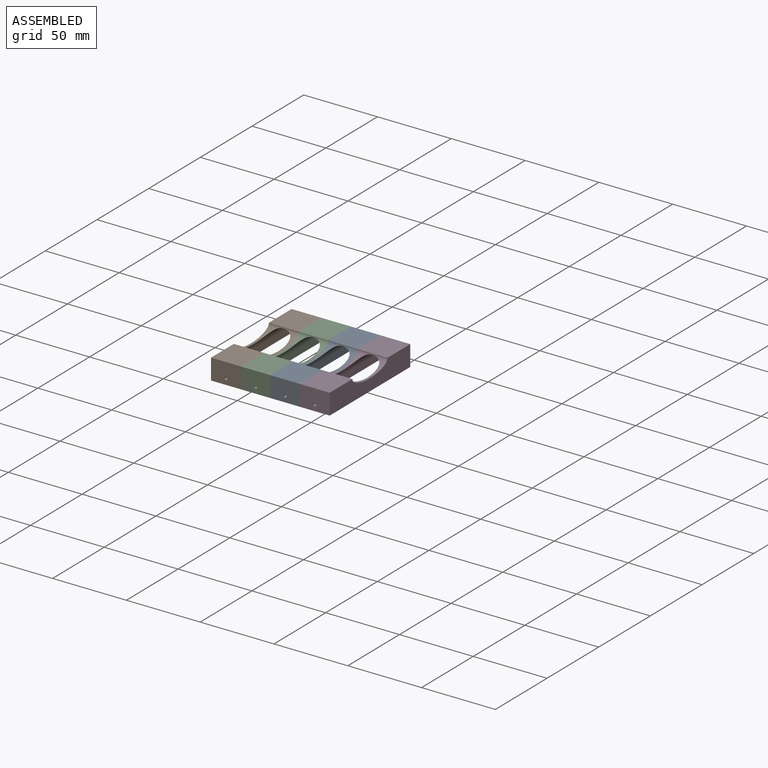
[diagram: assembled view]
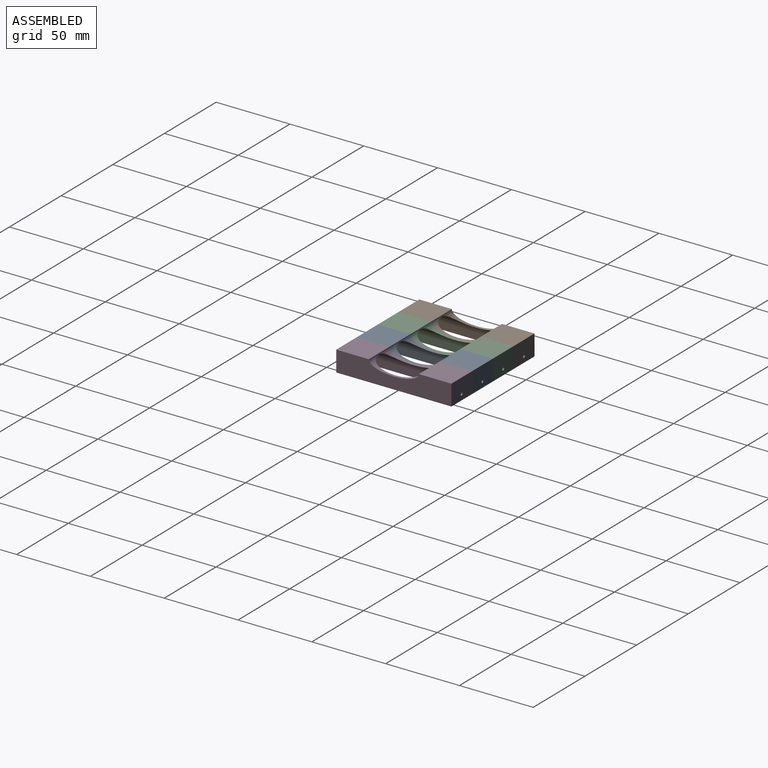
[diagram: assembled view, second angle]
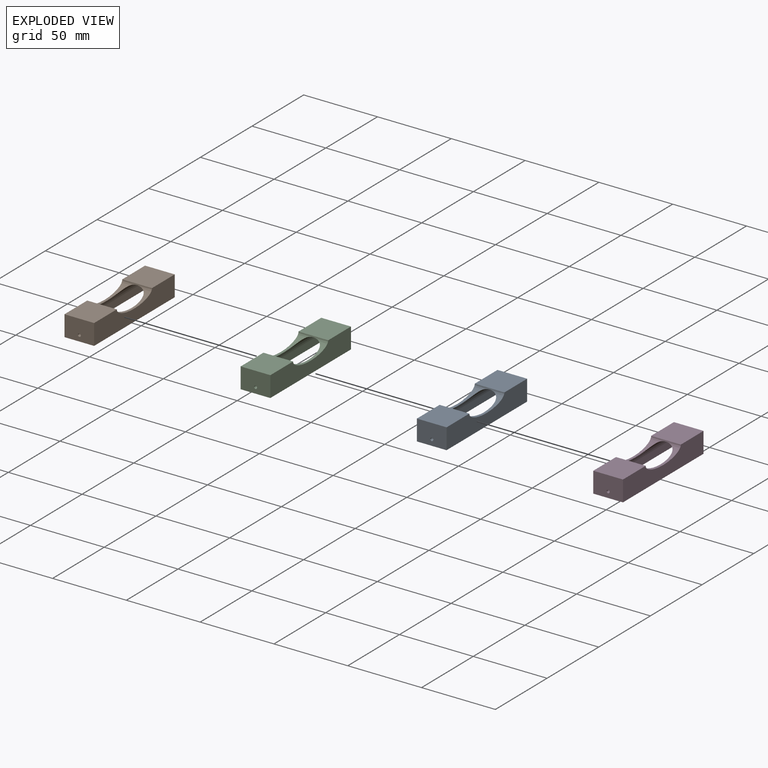
[diagram: exploded view]
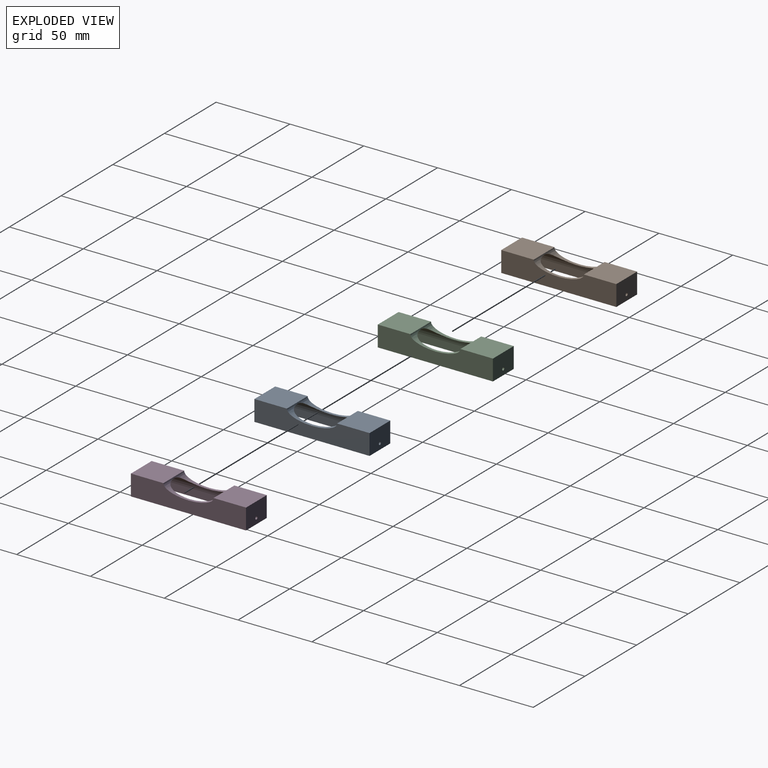
[diagram: exploded view, second angle]
ASSEMBLY  parts=4 mates=3
PART A: 31 faces, bbox 20.1x78x14 mm
  f0: plane 22x20.1mm, normal (0,0,1), area 442.2mm2, adj f2,f3,f5,f30
  f1: plane 18.55x13.2mm, normal (0,1,0), area 187.2mm2, adj f7,f8,f9,f10,f15,f16,f20,f21
  f2: plane 20.1x14mm, normal (0,-1,0), area 278.3mm2, adj f0,f3,f5,f7,f28
  f3: plane 78x14mm, normal (1,0,0), area 931.8mm2, adj f0,f2,f4,f6,f7,f30
  f4: plane 20.1x14mm, normal (0,1,0), area 278.3mm2, adj f3,f5,f6,f7,f29
  f5: plane 78x14mm, normal (-1,0,0), area 931.8mm2, adj f0,f2,f4,f6,f7,f30
  f6: plane 22x20.1mm, normal (0,0,1), area 442.2mm2, adj f3,f4,f5,f30
  f7: plane 78x20.1mm, normal (0,0,-1), area 195mm2, adj f1,f2,f3,f4,f5,f8,f10,f11
  f8: plane 74x4.87mm, normal (1,0,0), area 360.7mm2, adj f1,f7,f9,f11
  f9: cylinder r=9.3mm len=74mm, axis (0,1,0), area 1499.6mm2, adj f1,f8,f10,f11,f30
  f10: plane 74x3.9mm, normal (-1,0,0), area 288.5mm2, adj f1,f7,f9,f11
  f11: plane 18.55x13.2mm, normal (0,-1,0), area 205mm2, adj f7,f8,f9,f10,f29
  f12: plane 1.93x0.98mm, normal (0,-1,0), area 1.8mm2, adj f17,f19,f26,f27
  f13: plane 5.3x1.5mm, normal (-1,0,0), area 8mm2, adj f14,f24,f25,f26
  f14: plane 5.3x4.51mm, normal (-0.55,0.83,0), area 28.7mm2, adj f13,f15,f25,f26
  f15: plane 5.3x4.51mm, normal (-0.55,-0.83,0), area 28.7mm2, adj f1,f14,f25,f26
  f16: plane 5.3x4.51mm, normal (0.55,0.83,0), area 28mm2, adj f1,f17,f25,f26,f28
  f17: plane 5.3x4.51mm, normal (0.55,-0.83,0), area 28mm2, adj f12,f16,f18,f25,f26,f27
  f18: plane 1.63x0.98mm, normal (0,-1,0), area 1.5mm2, adj f17,f19,f25,f27
  f19: plane 5.3x4.51mm, normal (-0.55,-0.83,0), area 28mm2, adj f12,f18,f20,f25,f26,f27
  f20: plane 5.3x4.51mm, normal (-0.55,0.83,0), area 28mm2, adj f1,f19,f25,f26,f28
  f21: plane 5.3x4.51mm, normal (0.55,-0.83,0), area 28.7mm2, adj f1,f22,f25,f26
  f22: plane 5.3x4.51mm, normal (0.55,0.83,0), area 28.7mm2, adj f21,f23,f25,f26
  f23: plane 5.3x1.5mm, normal (1,0,0), area 8mm2, adj f22,f24,f25,f26
  f24: plane 5.3x4.59mm, normal (0,1,0), area 21.2mm2, adj f13,f23,f25,f26,f27
  f25: plane 13.61x7.5mm, normal (0,0,1), area 28.6mm2, adj f1,f13,f14,f15,f16,f17,f18,f19
  f26: plane 13.61x7.5mm, normal (0,0,-1), area 28.6mm2, adj f1,f12,f13,f14,f15,f16,f17,f19
  f27: cylinder r=1mm len=2mm, axis (0,1,0), area 10.4mm2, adj f12,f17,f18,f19,f24
  f28: cylinder r=1mm len=2.34mm, axis (0,1,0), area 13.5mm2, adj f1,f2,f16,f20
  f29: cylinder r=1mm len=2mm, axis (0,1,0), area 12.6mm2, adj f4,f11
  f30: extruded ~34x20.1mm, area 242.9mm2, adj f0,f3,f5,f6,f9
PART B: same geometry as A
PART C: same geometry as A
PART D: same geometry as A
PLACE A rot(axis=(-0.09,0.87,0.48),0deg) t=(-33.93,36.32,-25.26)mm
PLACE B t=(-74.13,36.32,-25.26)mm
PLACE C rot(axis=(-0.26,0.97,0),0deg) t=(-54.03,36.32,-25.26)mm
PLACE D t=(-13.83,36.32,-25.26)mm
MATE fastened A.f3 <-> D.f5  axis (1,0,0) through (-14.63,-0.68,-19.02)mm
MATE fastened A.f5 <-> C.f3  axis (-1,0,0) through (-34.73,-0.68,-19.02)mm
MATE fastened C.f5 <-> B.f3  axis (-1,0,0) through (-54.83,-0.68,-19.02)mm
